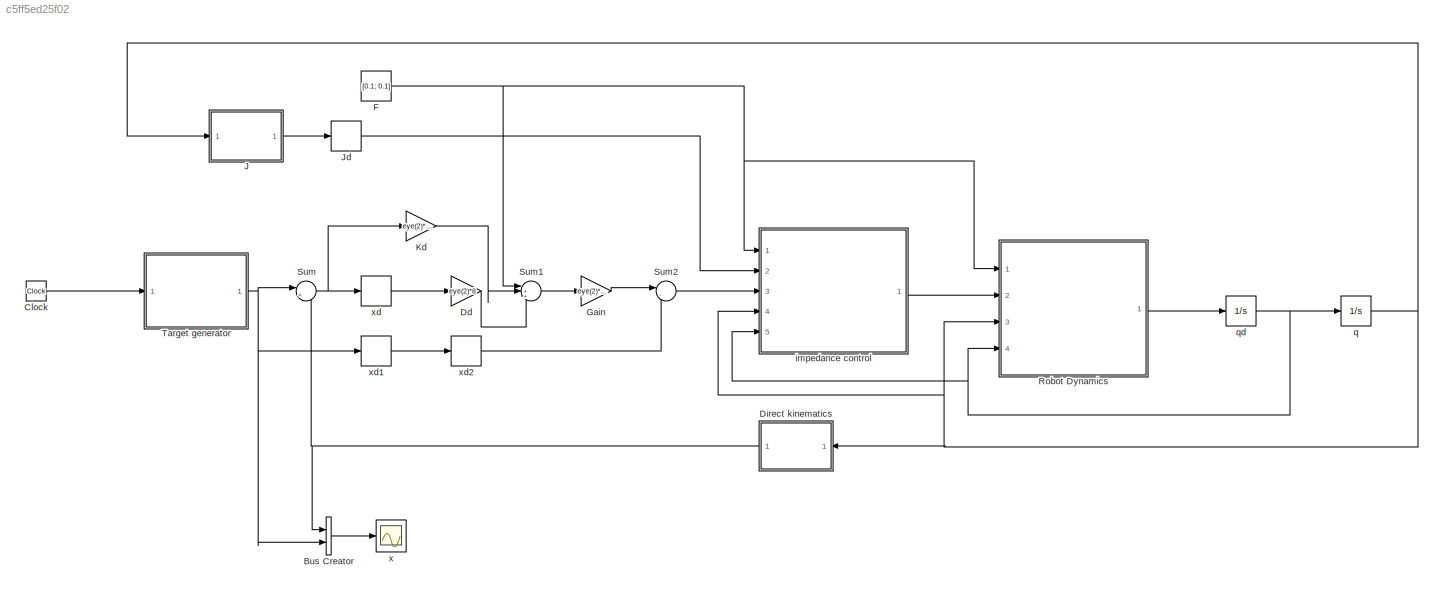
MODEL slx_c5ff5ed25f02
KIND model
CONFIG AbsTol = auto
CONFIG EnableMultiTasking = off
CONFIG FixedStep = auto
CONFIG MaxStep = auto
CONFIG MinStep = auto
CONFIG RelTol = 1e-3
CONFIG SampleTimeConstraint = Unconstrained
CONFIG Solver = VariableStepAuto
CONFIG SolverName = VariableStepAuto
CONFIG StartTime = 0.0
CONFIG StopTime = 1.0
BLOCK [BusCreator] Bus Creator
  DisplayOption = bar
  InheritFromInputs = on
  Inputs = 2
  Ports = [2, 1]
BLOCK [Clock] Clock
BLOCK [Gain] Dd
  Gain = eye(2)*8
  Multiplication = Matrix(K*u)
  OutDataTypeStr = Inherit: Inherit via internal rule
  ParamDataTypeStr = Inherit: Inherit via internal rule
  SaturateOnIntegerOverflow = off
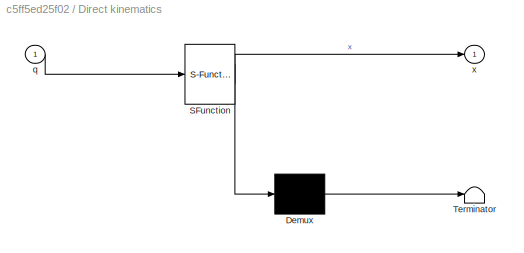
BLOCK [SubSystem] Direct kinematics
  ErrorFcn = Stateflow.Translate.translate
  PermitHierarchicalResolution = ExplicitOnly
  Ports = [1, 1]
  RequestExecContextInheritance = off
  SFBlockType = MATLAB Function
  TreatAsAtomicUnit = on
  Variant = off
BLOCK [Demux] Direct kinematics/ Demux 
  Outputs = 1
  Ports = [1, 1]
BLOCK [S-Function] Direct kinematics/ SFunction 
  EnableBusSupport = on
  FunctionName = sf_sfun
  PortCounts = [1 2]
  Ports = [1, 2]
  SFcnIsStateOwnerBlock = off
  SFunctionDeploymentMode = off
  Tag = Stateflow S-Function Impedance_control_RR 4
BLOCK [Terminator] Direct kinematics/ Terminator 
BLOCK [Inport] Direct kinematics/q
  IconDisplay = Port number
BLOCK [Outport] Direct kinematics/x
  IconDisplay = Port number
BLOCK [Constant] F
  Value = [0.1; 0.1]
BLOCK [Gain] Gain
  Gain = eye(2)*10
  Multiplication = Matrix(K*u)
  OutDataTypeStr = Inherit: Inherit via internal rule
  ParamDataTypeStr = Inherit: Inherit via internal rule
  SaturateOnIntegerOverflow = off
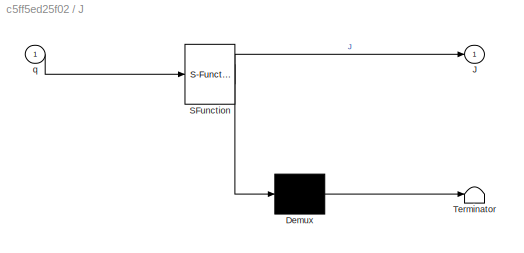
BLOCK [SubSystem] J
  ErrorFcn = Stateflow.Translate.translate
  PermitHierarchicalResolution = ExplicitOnly
  Ports = [1, 1]
  RequestExecContextInheritance = off
  SFBlockType = MATLAB Function
  TreatAsAtomicUnit = on
  Variant = off
BLOCK [Demux] J/ Demux 
  Outputs = 1
  Ports = [1, 1]
BLOCK [S-Function] J/ SFunction 
  EnableBusSupport = on
  FunctionName = sf_sfun
  PortCounts = [1 2]
  Ports = [1, 2]
  SFcnIsStateOwnerBlock = off
  SFunctionDeploymentMode = off
  Tag = Stateflow S-Function Impedance_control_RR 5
BLOCK [Terminator] J/ Terminator 
BLOCK [Outport] J/J
  IconDisplay = Port number
BLOCK [Inport] J/q
  IconDisplay = Port number
BLOCK [Derivative] Jd
BLOCK [Gain] Kd
  Gain = eye(2)*0.1
  Multiplication = Matrix(K*u)
  OutDataTypeStr = Inherit: Inherit via internal rule
  ParamDataTypeStr = Inherit: Inherit via internal rule
  SaturateOnIntegerOverflow = off
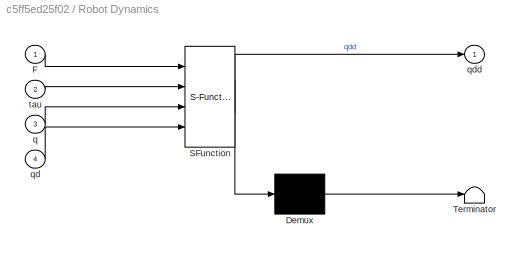
BLOCK [SubSystem] Robot Dynamics
  ErrorFcn = Stateflow.Translate.translate
  PermitHierarchicalResolution = ExplicitOnly
  Ports = [4, 1]
  RequestExecContextInheritance = off
  SFBlockType = MATLAB Function
  TreatAsAtomicUnit = on
  Variant = off
BLOCK [Demux] Robot Dynamics/ Demux 
  Outputs = 1
  Ports = [1, 1]
BLOCK [S-Function] Robot Dynamics/ SFunction 
  EnableBusSupport = on
  FunctionName = sf_sfun
  PortCounts = [4 2]
  Ports = [4, 2]
  SFcnIsStateOwnerBlock = off
  SFunctionDeploymentMode = off
  Tag = Stateflow S-Function Impedance_control_RR 3
BLOCK [Terminator] Robot Dynamics/ Terminator 
BLOCK [Inport] Robot Dynamics/F
  IconDisplay = Port number
BLOCK [Inport] Robot Dynamics/q
  IconDisplay = Port number
  Port = 3
BLOCK [Inport] Robot Dynamics/qd
  IconDisplay = Port number
  Port = 4
BLOCK [Outport] Robot Dynamics/qdd
  IconDisplay = Port number
BLOCK [Inport] Robot Dynamics/tau
  IconDisplay = Port number
  Port = 2
BLOCK [Sum] Sum
  IconShape = round
  InputSameDT = off
  Inputs = |+-
  OutDataTypeStr = Inherit: Inherit via internal rule
  Ports = [2, 1]
  SaturateOnIntegerOverflow = off
BLOCK [Sum] Sum1
  IconShape = round
  InputSameDT = off
  Inputs = |+++
  OutDataTypeStr = Inherit: Inherit via internal rule
  Ports = [3, 1]
  SaturateOnIntegerOverflow = off
BLOCK [Sum] Sum2
  IconShape = round
  InputSameDT = off
  Inputs = |-+
  OutDataTypeStr = Inherit: Inherit via internal rule
  Ports = [2, 1]
  SaturateOnIntegerOverflow = off
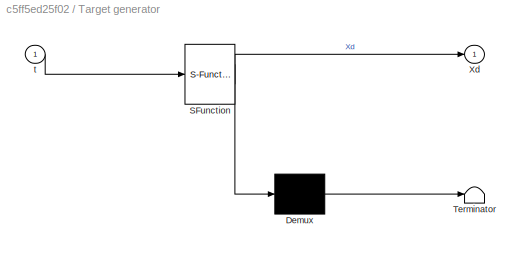
BLOCK [SubSystem] Target generator
  ErrorFcn = Stateflow.Translate.translate
  PermitHierarchicalResolution = ExplicitOnly
  Ports = [1, 1]
  RequestExecContextInheritance = off
  SFBlockType = MATLAB Function
  TreatAsAtomicUnit = on
  Variant = off
BLOCK [Demux] Target generator/ Demux 
  Outputs = 1
  Ports = [1, 1]
BLOCK [S-Function] Target generator/ SFunction 
  EnableBusSupport = on
  FunctionName = sf_sfun
  PortCounts = [1 2]
  Ports = [1, 2]
  SFcnIsStateOwnerBlock = off
  SFunctionDeploymentMode = off
  Tag = Stateflow S-Function Impedance_control_RR 2
BLOCK [Terminator] Target generator/ Terminator 
BLOCK [Outport] Target generator/Xd
  IconDisplay = Port number
BLOCK [Inport] Target generator/t
  IconDisplay = Port number
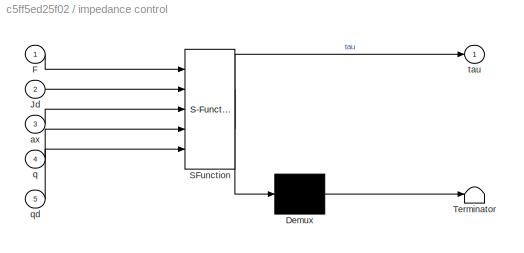
BLOCK [SubSystem] impedance control
  ErrorFcn = Stateflow.Translate.translate
  PermitHierarchicalResolution = ExplicitOnly
  Ports = [5, 1]
  RequestExecContextInheritance = off
  SFBlockType = MATLAB Function
  TreatAsAtomicUnit = on
  Variant = off
BLOCK [Demux] impedance control/ Demux 
  Outputs = 1
  Ports = [1, 1]
BLOCK [S-Function] impedance control/ SFunction 
  EnableBusSupport = on
  FunctionName = sf_sfun
  PortCounts = [5 2]
  Ports = [5, 2]
  SFcnIsStateOwnerBlock = off
  SFunctionDeploymentMode = off
  Tag = Stateflow S-Function Impedance_control_RR 1
BLOCK [Terminator] impedance control/ Terminator 
BLOCK [Inport] impedance control/F
  IconDisplay = Port number
BLOCK [Inport] impedance control/Jd
  IconDisplay = Port number
  Port = 2
BLOCK [Inport] impedance control/ax
  IconDisplay = Port number
  Port = 3
BLOCK [Inport] impedance control/q
  IconDisplay = Port number
  Port = 4
BLOCK [Inport] impedance control/qd
  IconDisplay = Port number
  Port = 5
BLOCK [Outport] impedance control/tau
  IconDisplay = Port number
BLOCK [Integrator] q
  InitialCondition = [pi/3; -2*pi/3]*1
  Ports = [1, 1]
BLOCK [Integrator] qd
  InitialCondition = [0; 0]
  Ports = [1, 1]
BLOCK [Scope] x
  NumInputPorts = 1
  Ports = [1]
  ScopeSpecificationString = Simulink.scopes.TimeScopeBlockCfg('CurrentConfiguration', extmgr.ConfigurationSet(extmgr.Configuration('Core','General UI',true),extmgr.Configuration('Core','Source UI',true),extmgr.Configuration('Sources','WiredSimulink',true),extmgr.Configuration('Visuals','Time Domain',true,'SerializedDisplays',{struct('MinYLimReal','-0.03922','MaxYLimReal','0.35299','YLabelReal','','MinYLimMag','0.00000','MaxY...<+1790ch>
BLOCK [Derivative] xd
BLOCK [Derivative] xd1
BLOCK [Derivative] xd2
LINE Bus Creator:1 -> x:1
LINE Clock:1 -> Target generator:1
LINE Dd:1 -> Sum1:3
NET Direct kinematics:1 -> Bus Creator:1, Sum:2
NET F:1 -> Robot Dynamics:1, Sum1:1, impedance control:1
LINE Gain:1 -> Sum2:1
LINE J:1 -> Jd:1
LINE Jd:1 -> impedance control:2
LINE Kd:1 -> Sum1:2
LINE Robot Dynamics:1 -> qd:1
LINE Sum1:1 -> Gain:1
LINE Sum2:1 -> impedance control:3
NET Sum:1 -> Kd:1, xd:1
NET Target generator:1 -> Bus Creator:2, Sum:1, xd1:1
LINE impedance control:1 -> Robot Dynamics:2
NET q:1 -> Direct kinematics:1, J:1, Robot Dynamics:3, impedance control:4
NET qd:1 -> Robot Dynamics:4, impedance control:5, q:1
LINE xd1:1 -> xd2:1
LINE xd2:1 -> Sum2:2
LINE xd:1 -> Dd:1
note: NET lines group one-source signal fan-out (src -> all destinations, sorted); 1:1 wires keep LINE
CHART impedance control states=1 transitions=1
  STATE_LABEL 'eML_blk_kernel()'
  STATE_LABEL "SCRIPT:\nfunction tau = fcn(F, Jd, ax, q, qd)\n\nMd = eye(2)*0.1;\nL1 = 0.2;\nL2 = 0.2;\n\nLc1 = L1/2;\nLc2 = L2/2;\n\ng = 9.81;\nm1 = 1;\nm2 = 1;\nI1 = 0.003;\nI2 = 0.003;\n\nq1 = q(1);\nq2 = q(2);\nqd1 = qd(1);\nqd2 = qd(2);\n\nJc1 = [-Lc1*sin(q1) 0; Lc1*cos(q1) 0];\nJc2 = [-L1*sin(q1) - Lc2*sin(q1+q2), -Lc2*sin(q1+q2); ...\n        L1*cos(q1) + Lc2*cos(q1+q2), Lc2*cos(q1+q2)];\n\nM = m1*(Jc1')*Jc1 + m2*(Jc2')*Jc2 + [I1...<+367ch>"
CHART Target generator states=1 transitions=1
  STATE_LABEL 'eML_blk_kernel()'
  STATE_LABEL 'SCRIPT:\nfunction Xd = fcn(t)\n\nXd = [0.2 + 0.1*(6*t^5 - 15*t^4 + 10*t^3); 0];\n% Xd = [0.4; 0];\n\n\n% L1 = 0.2;\n% L2 = 0.2;\n% q1 = 0.2 + 0.1*(6*t^5 - 15*t^4 + 10*t^3);\n% q2 = 0;\n% Xd = [L1*cos(q1) + L2*cos(q1+q2); L1*sin(q1) + L2*sin(q1+q2)];'
CHART Robot Dynamics states=1 transitions=1
  STATE_LABEL 'eML_blk_kernel()'
  STATE_LABEL "SCRIPT:\nfunction qdd = fcn(F, tau, q, qd)\n\nL1 = 0.2;\nL2 = 0.2;\n\nLc1 = L1/2;\nLc2 = L2/2;\n\ng = 9.81;\nm1 = 1;\nm2 = 1;\nI1 = 0.003;\nI2 = 0.003;\n\nq1 = q(1);\nq2 = q(2);\nqd1 = qd(1);\nqd2 = qd(2);\n\nJc1 = [-Lc1*sin(q1) 0; Lc1*cos(q1) 0];\nJc2 = [-L1*sin(q1) - Lc2*sin(q1+q2), -Lc2*sin(q1+q2); ...\n        L1*cos(q1) + Lc2*cos(q1+q2), Lc2*cos(q1+q2)];\n\nD = m1*(Jc1')*Jc1 + m2*(Jc2')*Jc2 + [I1+I2 I2; I2 I2];\n\nh =...<+300ch>"
CHART Direct kinematics states=1 transitions=1
  STATE_LABEL 'eML_blk_kernel()'
  STATE_LABEL 'SCRIPT:\nfunction x = fcn(q)\nL1 = 0.2;\nL2 = 0.2;\nq1 = q(1);\nq2 = q(2);\nx = [L1*cos(q1) + L2*cos(q1+q2); L1*sin(q1) + L2*sin(q1+q2)];\n'
CHART J states=1 transitions=1
  STATE_LABEL 'eML_blk_kernel()'
  STATE_LABEL 'SCRIPT:\nfunction J = fcn(q)\nL1 = 0.2;\nL2 = 0.2;\nq1 = q(1);\nq2 = q(2);\nJ = [-L1*sin(q1) - L2*sin(q1+q2), -L2*sin(q1+q2); ...\n        L1*cos(q1) + L2*cos(q1+q2), L2*cos(q1+q2)];\n'
